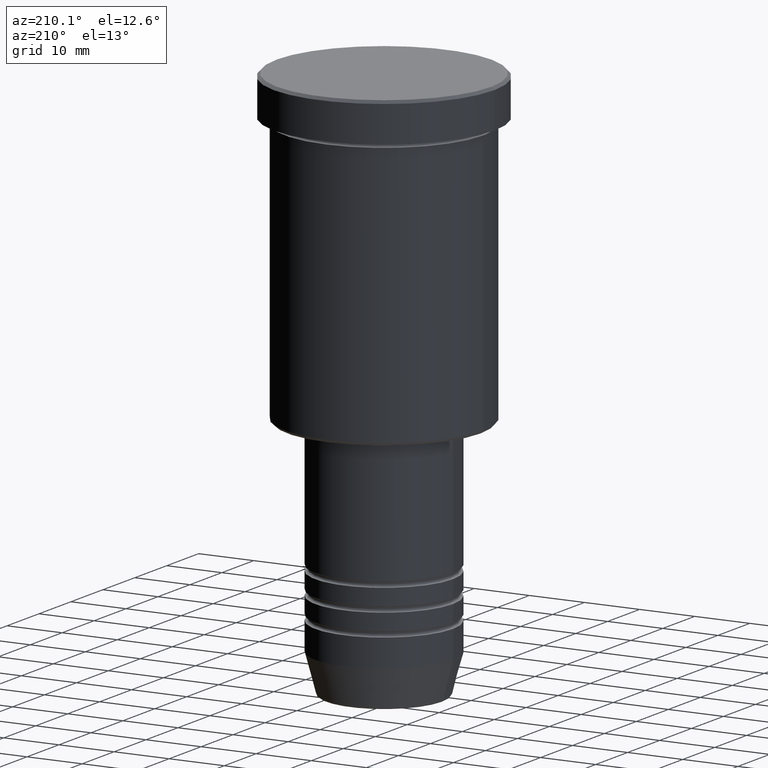
[diagram: clean part render]
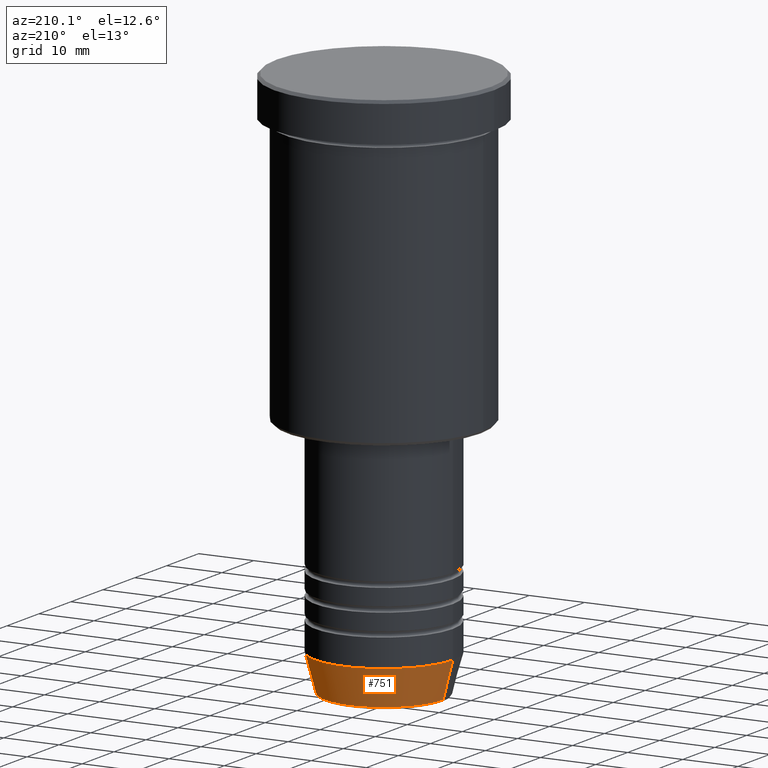
[diagram: same view with one face highlighted and labeled with its STEP entity id]
A machine part, auxiliary view. The second image highlights one B-rep face of the part: STEP entity #751.
In plain terms, the highlighted conical surface has half-angle 15 deg.
Its self-contained STEP definition (entity closure, byte-faithful):
#3 = CONICAL_SURFACE ( 'NONE', #670, 12.50000000000000000, 0.2617993877991500740 ) ;
#101 = CIRCLE ( 'NONE', #1140, 12.50000000000000000 ) ;
#173 = CARTESIAN_POINT ( 'NONE',  ( 0.000000000000000000, 0.000000000000000000, -99.62940952255127058 ) ) ;
#280 = DIRECTION ( 'NONE',  ( 1.000000000000000000, 0.000000000000000000, 0.000000000000000000 ) ) ;
#318 = CARTESIAN_POINT ( 'NONE',  ( -12.50000000000000000, 1.530808498934191521E-15, -93.00000000000000000 ) ) ;
#395 = VERTEX_POINT ( 'NONE', #1021 ) ;
#438 = DIRECTION ( 'NONE',  ( -0.000000000000000000, -0.000000000000000000, 1.000000000000000000 ) ) ;
#465 = CARTESIAN_POINT ( 'NONE',  ( 12.50000000000000000, 0.000000000000000000, -93.00000000000000000 ) ) ;
#541 = EDGE_CURVE ( 'NONE', #1151, #1006, #101, .T. ) ;
#565 = FACE_OUTER_BOUND ( 'NONE', #602, .T. ) ;
#574 = VECTOR ( 'NONE', #764, 1000.000000000000000 ) ;
#581 = EDGE_CURVE ( 'NONE', #395, #680, #590, .T. ) ;
#590 = CIRCLE ( 'NONE', #980, 10.72365507213718416 ) ;
#602 = EDGE_LOOP ( 'NONE', ( #957, #800, #1022, #848 ) ) ;
#620 = DIRECTION ( 'NONE',  ( -0.000000000000000000, -0.000000000000000000, 1.000000000000000000 ) ) ;
#659 = CARTESIAN_POINT ( 'NONE',  ( 0.000000000000000000, 0.000000000000000000, -93.00000000000000000 ) ) ;
#670 = AXIS2_PLACEMENT_3D ( 'NONE', #659, #939, #759 ) ;
#680 = VERTEX_POINT ( 'NONE', #699 ) ;
#699 = CARTESIAN_POINT ( 'NONE',  ( -10.72365507213718416, 1.422038742429749727E-15, -99.62940952255127058 ) ) ;
#710 = DIRECTION ( 'NONE',  ( 1.000000000000000000, 0.000000000000000000, 0.000000000000000000 ) ) ;
#726 = CARTESIAN_POINT ( 'NONE',  ( 0.000000000000000000, 0.000000000000000000, -93.00000000000000000 ) ) ;
#751 = ADVANCED_FACE ( 'NONE', ( #565 ), #3, .T. ) ;
#759 = DIRECTION ( 'NONE',  ( 1.000000000000000000, 0.000000000000000000, 0.000000000000000000 ) ) ;
#764 = DIRECTION ( 'NONE',  ( -0.2588190451025213501, 3.169619151431772337E-17, 0.9659258262890680902 ) ) ;
#778 = CARTESIAN_POINT ( 'NONE',  ( -12.50000000000000000, 1.530808498934191521E-15, -93.00000000000000000 ) ) ;
#800 = ORIENTED_EDGE ( 'NONE', *, *, #1133, .T. ) ;
#817 = LINE ( 'NONE', #465, #1160 ) ;
#833 = DIRECTION ( 'NONE',  ( 0.2588190451025213501, 0.000000000000000000, 0.9659258262890680902 ) ) ;
#848 = ORIENTED_EDGE ( 'NONE', *, *, #996, .F. ) ;
#870 = LINE ( 'NONE', #778, #574 ) ;
#939 = DIRECTION ( 'NONE',  ( -0.000000000000000000, -0.000000000000000000, 1.000000000000000000 ) ) ;
#957 = ORIENTED_EDGE ( 'NONE', *, *, #581, .T. ) ;
#980 = AXIS2_PLACEMENT_3D ( 'NONE', #173, #620, #280 ) ;
#996 = EDGE_CURVE ( 'NONE', #395, #1151, #817, .T. ) ;
#1006 = VERTEX_POINT ( 'NONE', #318 ) ;
#1021 = CARTESIAN_POINT ( 'NONE',  ( 10.72365507213718416, 0.000000000000000000, -99.62940952255127058 ) ) ;
#1022 = ORIENTED_EDGE ( 'NONE', *, *, #541, .F. ) ;
#1133 = EDGE_CURVE ( 'NONE', #680, #1006, #870, .T. ) ;
#1140 = AXIS2_PLACEMENT_3D ( 'NONE', #726, #438, #710 ) ;
#1151 = VERTEX_POINT ( 'NONE', #1153 ) ;
#1153 = CARTESIAN_POINT ( 'NONE',  ( 12.50000000000000000, 0.000000000000000000, -93.00000000000000000 ) ) ;
#1160 = VECTOR ( 'NONE', #833, 1000.000000000000000 ) ;